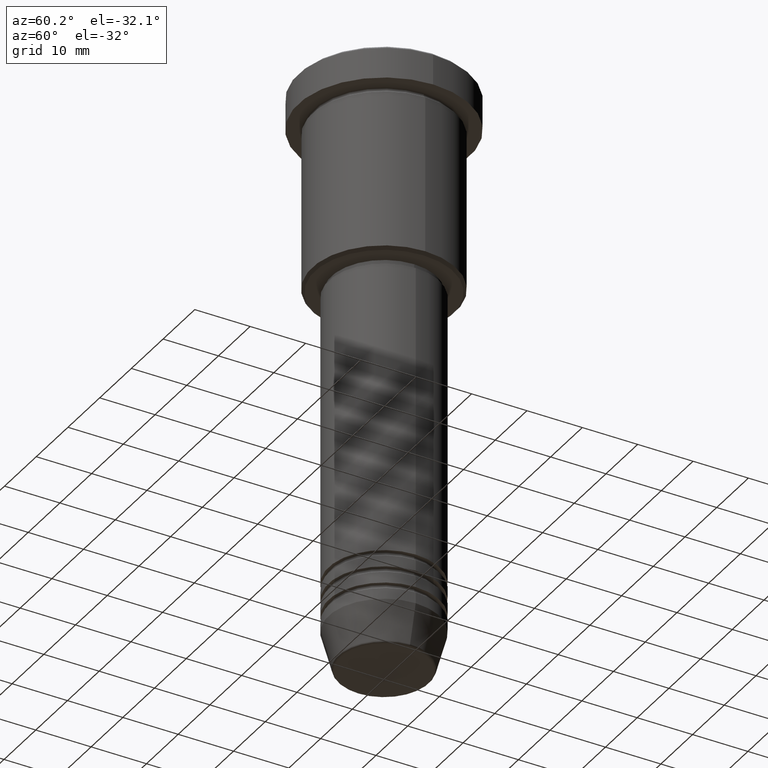
[diagram: clean part render]
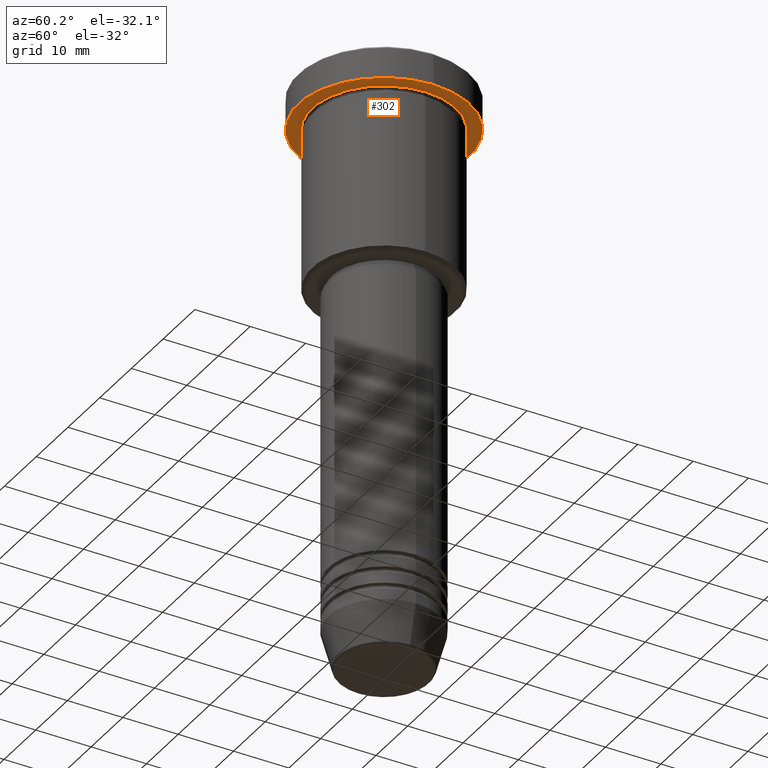
[diagram: same view with one face highlighted and labeled with its STEP entity id]
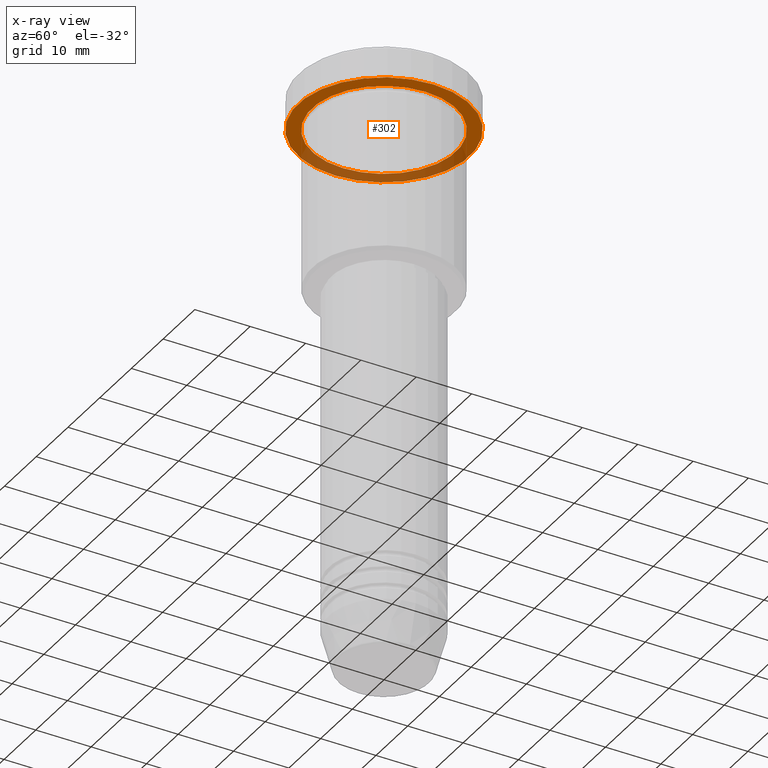
[diagram: x-ray of the same camera — body ghosted, the highlighted face saturated]
A machine part, auxiliary view. The second image highlights one B-rep face of the part: STEP entity #302.
The next image is the same camera in x-ray: the body ghosted, the highlighted face saturated — about 35% of this face is hidden behind the body in this view.
In plain terms, the highlighted planar face has unit normal (0, 0, -1).
Its self-contained STEP definition (entity closure, byte-faithful):
#24 = DIRECTION ( 'NONE',  ( -0.000000000000000000, -0.000000000000000000, 1.000000000000000000 ) ) ;
#52 = EDGE_LOOP ( 'NONE', ( #239, #255 ) ) ;
#99 = CARTESIAN_POINT ( 'NONE',  ( 0.000000000000000000, 0.000000000000000000, -5.999999999999995559 ) ) ;
#150 = DIRECTION ( 'NONE',  ( 1.000000000000000000, 0.000000000000000000, 0.000000000000000000 ) ) ;
#170 = CARTESIAN_POINT ( 'NONE',  ( 0.000000000000000000, 15.50000000000000000, -5.999999999999995559 ) ) ;
#179 = CIRCLE ( 'NONE', #1044, 13.00000000000000000 ) ;
#204 = DIRECTION ( 'NONE',  ( -0.000000000000000000, -0.000000000000000000, 1.000000000000000000 ) ) ;
#239 = ORIENTED_EDGE ( 'NONE', *, *, #484, .F. ) ;
#255 = ORIENTED_EDGE ( 'NONE', *, *, #654, .F. ) ;
#256 = DIRECTION ( 'NONE',  ( 0.000000000000000000, 0.000000000000000000, -1.000000000000000000 ) ) ;
#287 = CARTESIAN_POINT ( 'NONE',  ( 0.000000000000000000, 0.000000000000000000, -5.999999999999995559 ) ) ;
#302 = ADVANCED_FACE ( 'NONE', ( #554, #358 ), #535, .T. ) ;
#309 = CARTESIAN_POINT ( 'NONE',  ( -13.00000000000000000, 0.000000000000000000, -5.999999999999994671 ) ) ;
#325 = CARTESIAN_POINT ( 'NONE',  ( 0.000000000000000000, 0.000000000000000000, -5.999999999999995559 ) ) ;
#358 = FACE_OUTER_BOUND ( 'NONE', #52, .T. ) ;
#378 = VERTEX_POINT ( 'NONE', #729 ) ;
#382 = DIRECTION ( 'NONE',  ( -1.000000000000000000, 0.000000000000000000, 0.000000000000000000 ) ) ;
#406 = EDGE_LOOP ( 'NONE', ( #997, #444 ) ) ;
#412 = CIRCLE ( 'NONE', #951, 15.50000000000000000 ) ;
#444 = ORIENTED_EDGE ( 'NONE', *, *, #937, .T. ) ;
#484 = EDGE_CURVE ( 'NONE', #1140, #378, #412, .T. ) ;
#504 = CARTESIAN_POINT ( 'NONE',  ( 15.50000000000000000, 0.000000000000000000, -5.999999999999995559 ) ) ;
#521 = DIRECTION ( 'NONE',  ( -0.000000000000000000, -0.000000000000000000, 1.000000000000000000 ) ) ;
#524 = EDGE_CURVE ( 'NONE', #1123, #771, #1115, .T. ) ;
#535 = PLANE ( 'NONE',  #917 ) ;
#554 = FACE_BOUND ( 'NONE', #406, .T. ) ;
#611 = AXIS2_PLACEMENT_3D ( 'NONE', #99, #783, #934 ) ;
#654 = EDGE_CURVE ( 'NONE', #378, #1140, #986, .T. ) ;
#662 = DIRECTION ( 'NONE',  ( 1.000000000000000000, 0.000000000000000000, 0.000000000000000000 ) ) ;
#729 = CARTESIAN_POINT ( 'NONE',  ( -15.50000000000000000, 1.898202538678397557E-15, -5.999999999999995559 ) ) ;
#761 = CARTESIAN_POINT ( 'NONE',  ( 0.000000000000000000, 0.000000000000000000, -5.999999999999995559 ) ) ;
#771 = VERTEX_POINT ( 'NONE', #823 ) ;
#783 = DIRECTION ( 'NONE',  ( -0.000000000000000000, -0.000000000000000000, 1.000000000000000000 ) ) ;
#823 = CARTESIAN_POINT ( 'NONE',  ( 13.00000000000000000, 1.592040838891559095E-15, -5.999999999999994671 ) ) ;
#917 = AXIS2_PLACEMENT_3D ( 'NONE', #170, #256, #1102 ) ;
#918 = AXIS2_PLACEMENT_3D ( 'NONE', #325, #521, #150 ) ;
#934 = DIRECTION ( 'NONE',  ( -1.000000000000000000, 0.000000000000000000, 0.000000000000000000 ) ) ;
#937 = EDGE_CURVE ( 'NONE', #771, #1123, #179, .T. ) ;
#951 = AXIS2_PLACEMENT_3D ( 'NONE', #287, #24, #662 ) ;
#986 = CIRCLE ( 'NONE', #918, 15.50000000000000000 ) ;
#997 = ORIENTED_EDGE ( 'NONE', *, *, #524, .T. ) ;
#1044 = AXIS2_PLACEMENT_3D ( 'NONE', #761, #204, #382 ) ;
#1102 = DIRECTION ( 'NONE',  ( -1.000000000000000000, 0.000000000000000000, -0.000000000000000000 ) ) ;
#1115 = CIRCLE ( 'NONE', #611, 13.00000000000000000 ) ;
#1123 = VERTEX_POINT ( 'NONE', #309 ) ;
#1140 = VERTEX_POINT ( 'NONE', #504 ) ;